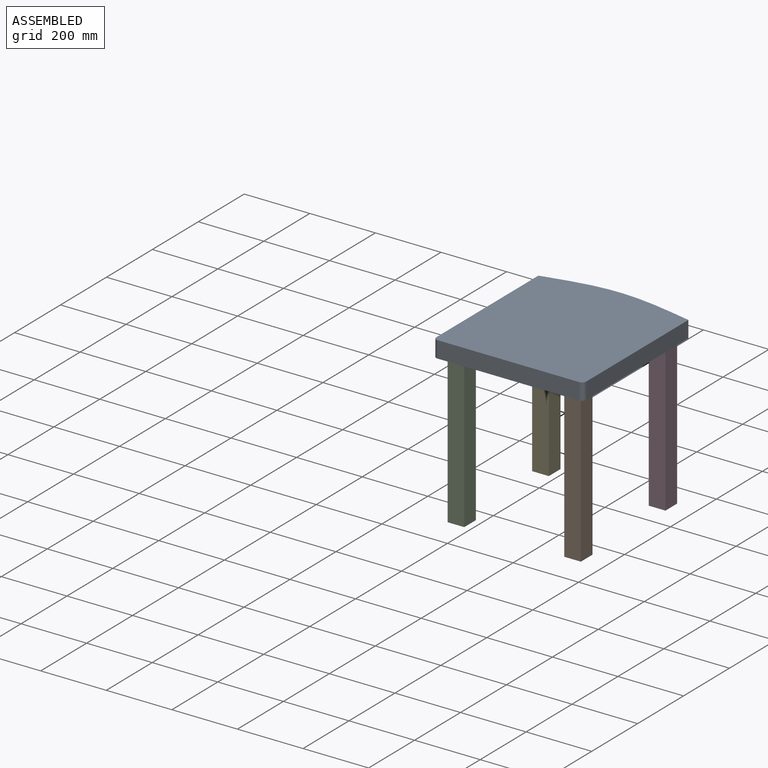
[diagram: assembled view]
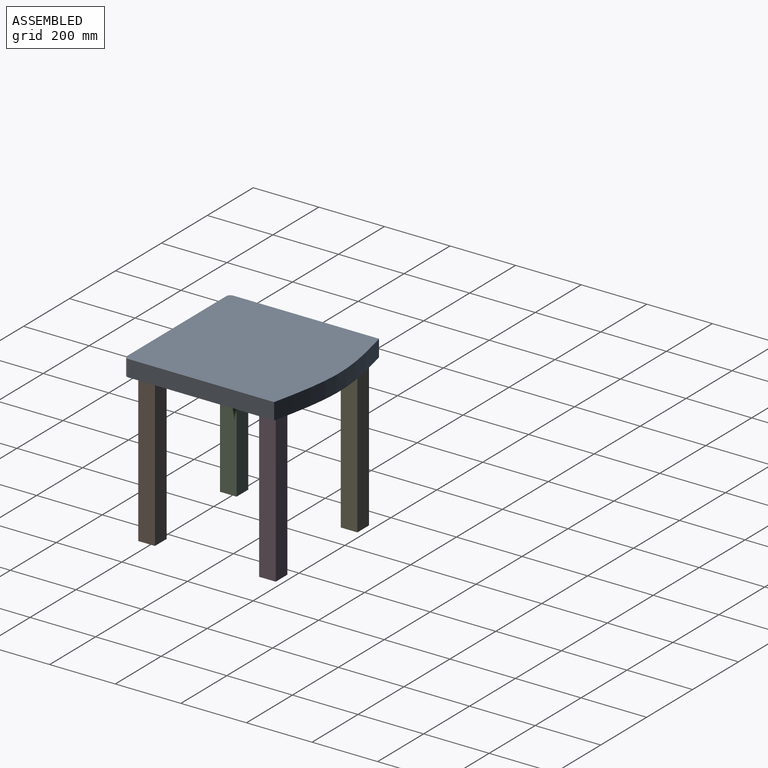
[diagram: assembled view, second angle]
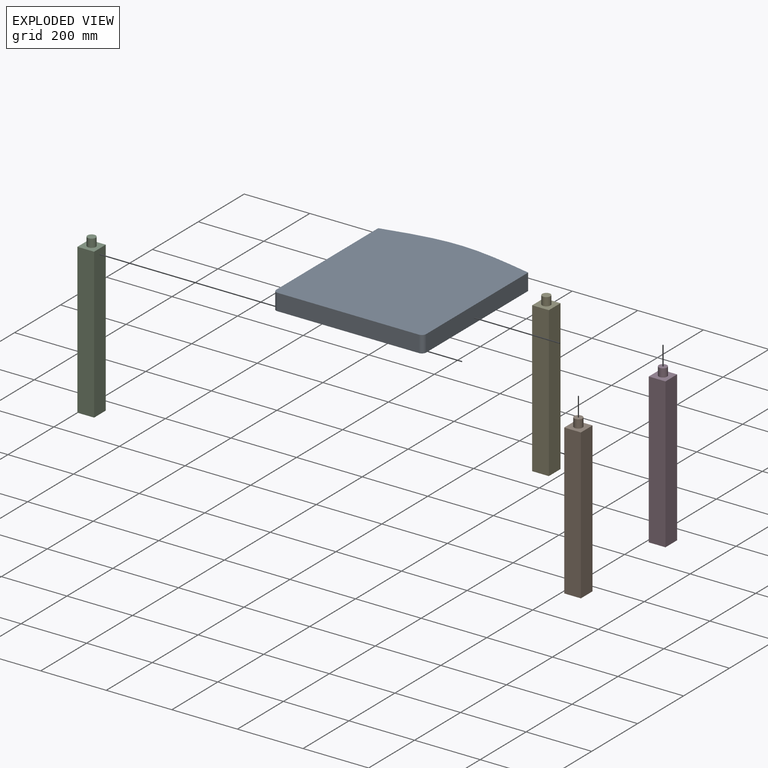
[diagram: exploded view]
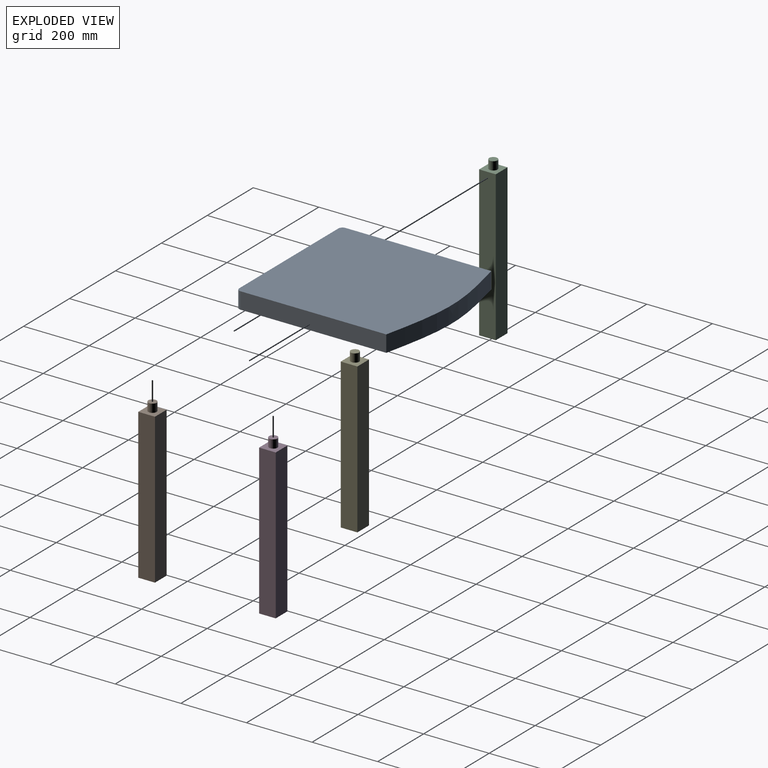
[diagram: exploded view, second angle]
ASSEMBLY  parts=5 mates=4
PART A: 16 faces, bbox 457.2x494.1x50.8 mm
  f0: plane 494.1x457.2mm, normal (0,0,-1), area 216934.1mm2, adj f1,f2,f3,f4,f5,f6,f8,f10
  f1: plane 444.5x50.8mm, normal (1,0,0), area 22580.6mm2, adj f0,f2,f6,f7
  f2: extruded ~457.2x50.8mm, area 23549.5mm2, adj f0,f1,f3,f7
  f3: plane 444.5x50.8mm, normal (-1,0,0), area 22580.6mm2, adj f0,f2,f4,f7
  f4: cylinder r=12.7mm len=50.8mm, axis (0,0,-1), area 1013.4mm2, adj f0,f3,f5,f7
  f5: plane 431.8x50.8mm, normal (0,-1,0), area 21935.4mm2, adj f0,f4,f6,f7
  f6: cylinder r=12.7mm len=50.8mm, axis (0,0,-1), area 1013.4mm2, adj f0,f1,f5,f7
  f7: plane 494.1x457.2mm, normal (0,0,1), area 218960.9mm2, adj f1,f2,f3,f4,f5,f6
  f8: cylinder r=12.7mm len=25.4mm, axis (0,0,-1), area 2026.8mm2, adj f0,f9
  f9: plane 25.4x25.4mm, normal (0,0,-1), area 506.7mm2, adj f8
  f10: cylinder r=12.7mm len=25.4mm, axis (0,0,-1), area 2026.8mm2, adj f0,f11
  f11: plane 25.4x25.4mm, normal (0,0,-1), area 506.7mm2, adj f10
  f12: cylinder r=12.7mm len=25.4mm, axis (0,0,-1), area 2026.8mm2, adj f0,f13
  f13: plane 25.4x25.4mm, normal (0,0,-1), area 506.7mm2, adj f12
  f14: cylinder r=12.7mm len=25.4mm, axis (0,0,-1), area 2026.8mm2, adj f0,f15
  f15: plane 25.4x25.4mm, normal (0,0,-1), area 506.7mm2, adj f14
PART B: 8 faces, bbox 50.8x50.8x482.6 mm
  f0: plane 457.2x50.8mm, normal (-1,0,0), area 23225.8mm2, adj f1,f3,f4,f5
  f1: plane 457.2x50.8mm, normal (0,-1,0), area 23225.8mm2, adj f0,f2,f4,f5
  f2: plane 457.2x50.8mm, normal (1,0,0), area 23225.8mm2, adj f1,f3,f4,f5
  f3: plane 457.2x50.8mm, normal (0,1,0), area 23225.8mm2, adj f0,f2,f4,f5
  f4: plane 50.8x50.8mm, normal (0,0,-1), area 2580.6mm2, adj f0,f1,f2,f3
  f5: plane 50.8x50.8mm, normal (0,0,1), area 2073.9mm2, adj f0,f1,f2,f3,f6
  f6: cylinder r=12.7mm len=25.4mm, axis (0,0,-1), area 2026.8mm2, adj f5,f7
  f7: plane 25.4x25.4mm, normal (0,0,1), area 506.7mm2, adj f6
PART C: same geometry as B
PART D: same geometry as B
PART E: same geometry as B
PLACE A t=(-128.15,-94.14,31.44)mm
PLACE B t=(227.45,-94.14,31.44)mm
PLACE C t=(-128.15,-94.14,31.44)mm
PLACE D t=(227.45,274.16,31.44)mm
PLACE E t=(-128.15,274.16,31.44)mm
MATE fastened E.f6 <-> A.f8  axis (0,0,1) through (-305.95,96.36,56.84)mm
MATE fastened C.f6 <-> A.f14  axis (0,0,1) through (-305.95,-271.94,56.84)mm
MATE fastened D.f6 <-> A.f10  axis (0,0,1) through (49.65,96.36,56.84)mm
MATE fastened B.f6 <-> A.f12  axis (0,0,1) through (49.65,-271.94,56.84)mm
